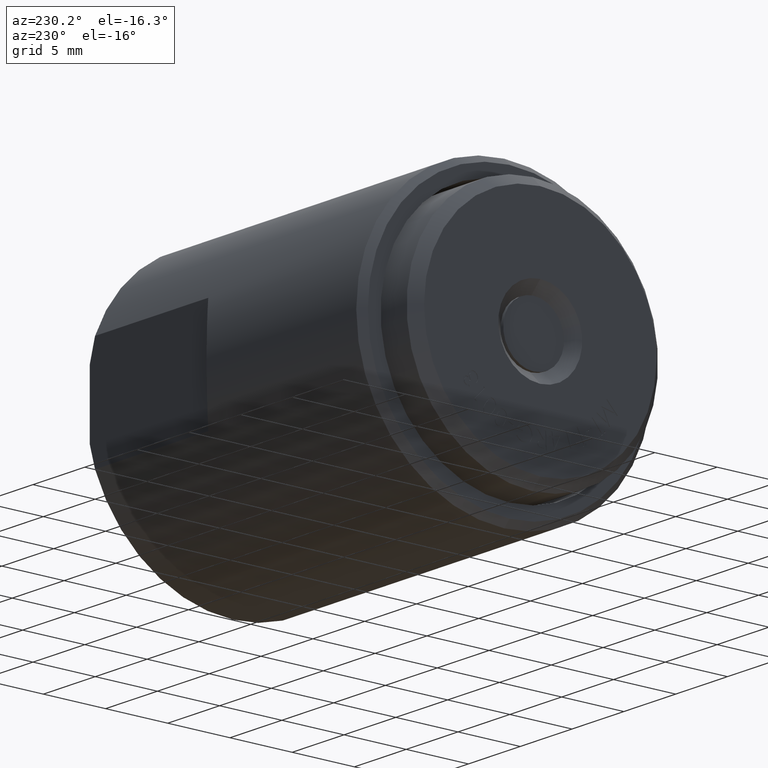
[diagram: clean part render]
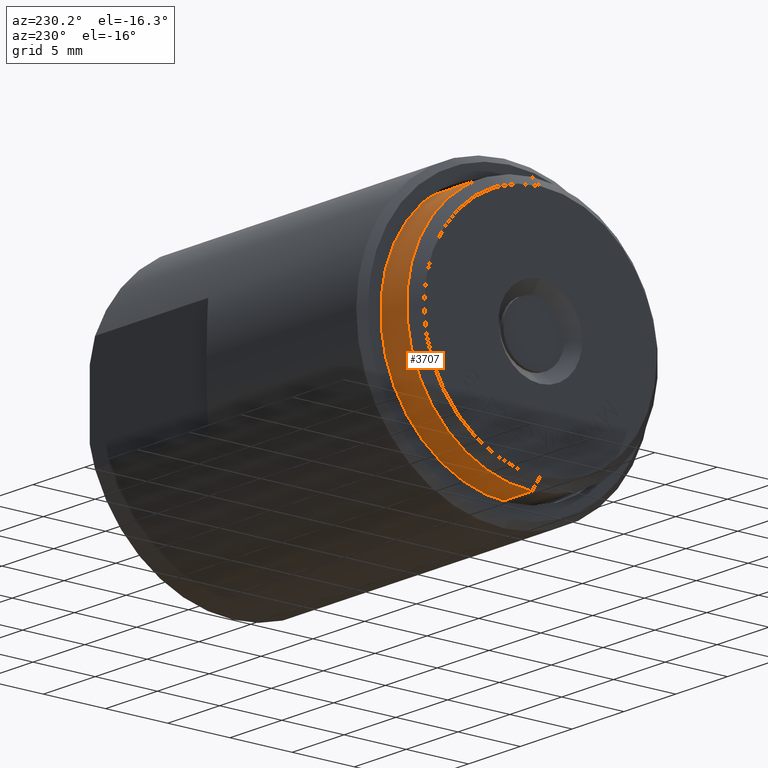
[diagram: same view with one face highlighted and labeled with its STEP entity id]
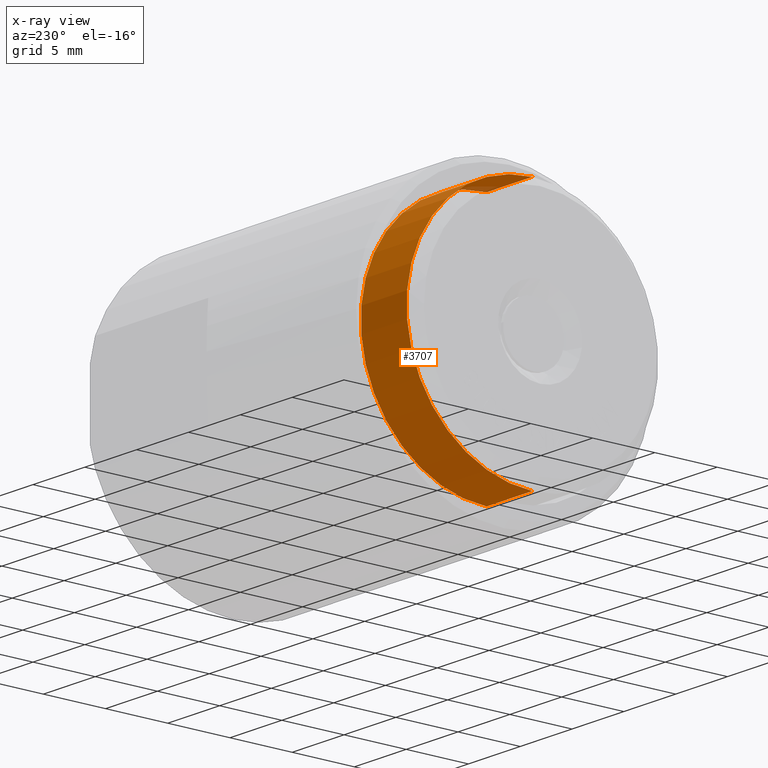
[diagram: x-ray of the same camera — body ghosted, the highlighted face saturated]
A machine part, auxiliary view. The second image highlights one B-rep face of the part: STEP entity #3707.
The next image is the same camera in x-ray: the body ghosted, the highlighted face saturated — about 1% of this face is hidden behind the body in this view.
In plain terms, the highlighted cylindrical surface (partial cylindrical patch) has radius 10.1092 mm, axis along (-1, -0, -0).
Its self-contained STEP definition (entity closure, byte-faithful):
#212 = DIRECTION ( 'NONE',  ( -1.000000000000000000, -0.0000000000000000000, -0.0000000000000000000 ) ) ;
#802 = DIRECTION ( 'NONE',  ( -1.000000000000000000, -0.0000000000000000000, -0.0000000000000000000 ) ) ;
#1260 = CARTESIAN_POINT ( 'NONE',  ( -0.2825000000000000289, 0.0000000000000000000, 0.0000000000000000000 ) ) ;
#1923 = VERTEX_POINT ( 'NONE', #3443 ) ;
#3299 = CARTESIAN_POINT ( 'NONE',  ( -0.1084999999999999992, 4.874094260606466065E-17, -0.3980000000000000204 ) ) ;
#3443 = CARTESIAN_POINT ( 'NONE',  ( -0.2825000000000000289, 4.874094260606466682E-17, -0.3980000000000000759 ) ) ;
#3608 = CARTESIAN_POINT ( 'NONE',  ( -0.1084999999999999992, 0.0000000000000000000, 0.0000000000000000000 ) ) ;
#3690 = EDGE_CURVE ( 'NONE', #6361, #1923, #4449, .T. ) ;
#3707 = ADVANCED_FACE ( 'NONE', ( #9221 ), #10338, .T. ) ;
#3787 = DIRECTION ( 'NONE',  ( 0.0000000000000000000, 0.0000000000000000000, 1.000000000000000000 ) ) ;
#3910 = LINE ( 'NONE', #6441, #7412 ) ;
#4400 = ORIENTED_EDGE ( 'NONE', *, *, #7009, .T. ) ;
#4449 = CIRCLE ( 'NONE', #4806, 0.3980000000000000759 ) ;
#4477 = CARTESIAN_POINT ( 'NONE',  ( -0.1084999999999999992, 0.0000000000000000000, 0.3980000000000000204 ) ) ;
#4668 = CARTESIAN_POINT ( 'NONE',  ( 0.0000000000000000000, 0.0000000000000000000, 0.0000000000000000000 ) ) ;
#4772 = EDGE_CURVE ( 'NONE', #6249, #1923, #11185, .T. ) ;
#4806 = AXIS2_PLACEMENT_3D ( 'NONE', #1260, #8508, #3787 ) ;
#4940 = CIRCLE ( 'NONE', #6644, 0.3980000000000000204 ) ;
#5114 = ORIENTED_EDGE ( 'NONE', *, *, #4772, .T. ) ;
#5386 = EDGE_LOOP ( 'NONE', ( #4400, #5114, #10015, #6231 ) ) ;
#5621 = DIRECTION ( 'NONE',  ( -1.000000000000000000, -0.0000000000000000000, -0.0000000000000000000 ) ) ;
#5874 = EDGE_CURVE ( 'NONE', #6439, #6361, #3910, .T. ) ;
#6231 = ORIENTED_EDGE ( 'NONE', *, *, #5874, .F. ) ;
#6249 = VERTEX_POINT ( 'NONE', #3299 ) ;
#6361 = VERTEX_POINT ( 'NONE', #7135 ) ;
#6439 = VERTEX_POINT ( 'NONE', #4477 ) ;
#6441 = CARTESIAN_POINT ( 'NONE',  ( 0.0000000000000000000, 0.0000000000000000000, 0.3980000000000000759 ) ) ;
#6644 = AXIS2_PLACEMENT_3D ( 'NONE', #3608, #802, #7995 ) ;
#6795 = CARTESIAN_POINT ( 'NONE',  ( 0.0000000000000000000, 4.874094260606466682E-17, -0.3980000000000000759 ) ) ;
#7009 = EDGE_CURVE ( 'NONE', #6439, #6249, #4940, .T. ) ;
#7135 = CARTESIAN_POINT ( 'NONE',  ( -0.2825000000000000289, 0.0000000000000000000, 0.3980000000000000759 ) ) ;
#7412 = VECTOR ( 'NONE', #212, 39.37007874015748143 ) ;
#7465 = VECTOR ( 'NONE', #5621, 39.37007874015748143 ) ;
#7995 = DIRECTION ( 'NONE',  ( 0.0000000000000000000, 0.0000000000000000000, 1.000000000000000000 ) ) ;
#8283 = DIRECTION ( 'NONE',  ( -1.000000000000000000, -0.0000000000000000000, -0.0000000000000000000 ) ) ;
#8508 = DIRECTION ( 'NONE',  ( -1.000000000000000000, -0.0000000000000000000, -0.0000000000000000000 ) ) ;
#9221 = FACE_OUTER_BOUND ( 'NONE', #5386, .T. ) ;
#10015 = ORIENTED_EDGE ( 'NONE', *, *, #3690, .F. ) ;
#10338 = CYLINDRICAL_SURFACE ( 'NONE', #11448, 0.3980000000000000759 ) ;
#10460 = DIRECTION ( 'NONE',  ( 0.0000000000000000000, 0.0000000000000000000, 1.000000000000000000 ) ) ;
#11185 = LINE ( 'NONE', #6795, #7465 ) ;
#11448 = AXIS2_PLACEMENT_3D ( 'NONE', #4668, #8283, #10460 ) ;